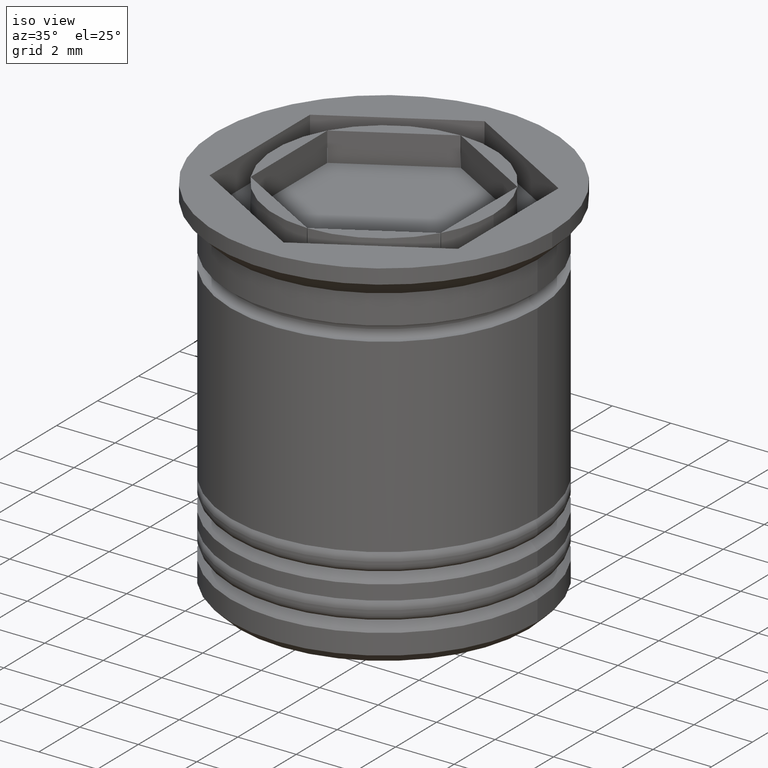
[diagram: clean part render]
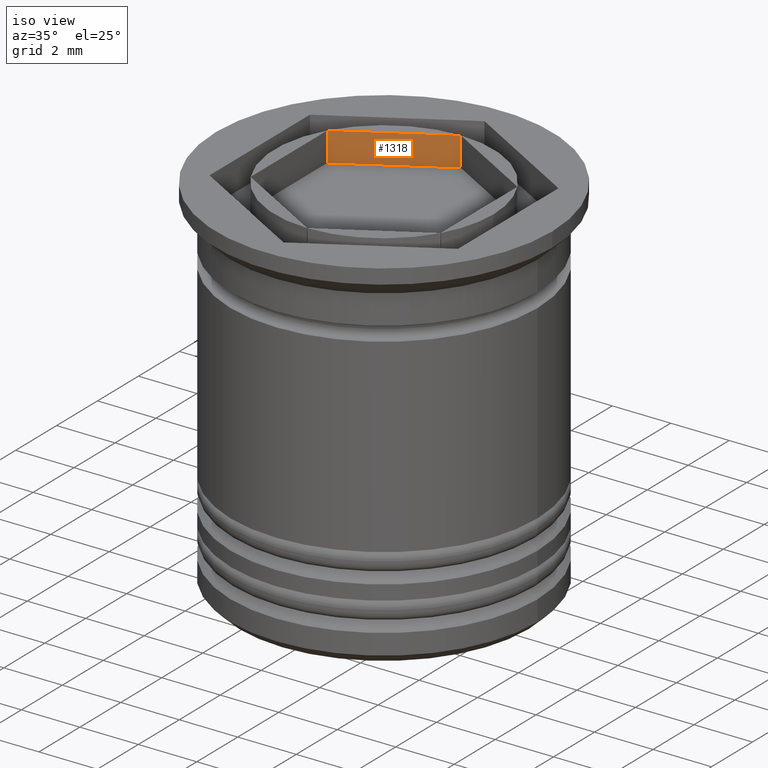
[diagram: same view with one face highlighted and labeled with its STEP entity id]
A machine part, iso view. The second image highlights one B-rep face of the part: STEP entity #1318.
In plain terms, the highlighted planar face has unit normal (-0.5, 0.866, 0).
Its self-contained STEP definition (entity closure, byte-faithful):
#177 = CARTESIAN_POINT ( 'NONE',  ( -1.625000000000000000, 2.814582562299425827, 0.000000000000000000 ) ) ;
#229 = VECTOR ( 'NONE', #1406, 1000.000000000000000 ) ;
#615 = CARTESIAN_POINT ( 'NONE',  ( -0.004814825398034354616, 3.749996908992910605, -1.000000000000000888 ) ) ;
#636 = EDGE_CURVE ( 'NONE', #1538, #1724, #1521, .T. ) ;
#639 = PLANE ( 'NONE',  #1363 ) ;
#796 = LINE ( 'NONE', #1880, #229 ) ;
#799 = DIRECTION ( 'NONE',  ( 0.8660254037844385966, 0.4999999999999999445, 0.000000000000000000 ) ) ;
#955 = ORIENTED_EDGE ( 'NONE', *, *, #636, .T. ) ;
#1037 = EDGE_CURVE ( 'NONE', #1439, #1468, #1560, .T. ) ;
#1041 = EDGE_CURVE ( 'NONE', #1468, #1538, #796, .T. ) ;
#1066 = ORIENTED_EDGE ( 'NONE', *, *, #1037, .T. ) ;
#1102 = VECTOR ( 'NONE', #799, 1000.000000000000114 ) ;
#1149 = CARTESIAN_POINT ( 'NONE',  ( -3.245185174601964651, 1.879168215605940162, 0.000000000000000000 ) ) ;
#1196 = DIRECTION ( 'NONE',  ( -0.000000000000000000, -0.000000000000000000, 1.000000000000000000 ) ) ;
#1249 = DIRECTION ( 'NONE',  ( -0.5000000000000000000, 0.8660254037844387076, 0.000000000000000000 ) ) ;
#1273 = FACE_OUTER_BOUND ( 'NONE', #1615, .T. ) ;
#1279 = CARTESIAN_POINT ( 'NONE',  ( 0.000000000000000000, 3.752776749732567030, -10.92891400573765459 ) ) ;
#1318 = ADVANCED_FACE ( 'NONE', ( #1273 ), #639, .F. ) ;
#1363 = AXIS2_PLACEMENT_3D ( 'NONE', #1279, #1249, #1405 ) ;
#1405 = DIRECTION ( 'NONE',  ( -0.8660254037844385966, -0.4999999999999999445, 0.000000000000000000 ) ) ;
#1406 = DIRECTION ( 'NONE',  ( 0.000000000000000000, 0.000000000000000000, -1.000000000000000000 ) ) ;
#1434 = VECTOR ( 'NONE', #1196, 1000.000000000000000 ) ;
#1439 = VERTEX_POINT ( 'NONE', #1484 ) ;
#1459 = VECTOR ( 'NONE', #1567, 1000.000000000000114 ) ;
#1468 = VERTEX_POINT ( 'NONE', #1149 ) ;
#1474 = ORIENTED_EDGE ( 'NONE', *, *, #1879, .T. ) ;
#1484 = CARTESIAN_POINT ( 'NONE',  ( -0.004814825398034763143, 3.749996908992911493, 0.000000000000000000 ) ) ;
#1521 = LINE ( 'NONE', #1671, #1102 ) ;
#1538 = VERTEX_POINT ( 'NONE', #1792 ) ;
#1560 = LINE ( 'NONE', #177, #1459 ) ;
#1567 = DIRECTION ( 'NONE',  ( -0.8660254037844385966, -0.4999999999999999445, -0.000000000000000000 ) ) ;
#1615 = EDGE_LOOP ( 'NONE', ( #1651, #955, #1474, #1066 ) ) ;
#1651 = ORIENTED_EDGE ( 'NONE', *, *, #1041, .T. ) ;
#1660 = CARTESIAN_POINT ( 'NONE',  ( -0.004814825398034546303, 3.749996908992911049, -1.000000000000000000 ) ) ;
#1671 = CARTESIAN_POINT ( 'NONE',  ( 0.000000000000000000, 3.752776749732567030, -1.000000000000000888 ) ) ;
#1724 = VERTEX_POINT ( 'NONE', #615 ) ;
#1790 = LINE ( 'NONE', #1660, #1434 ) ;
#1792 = CARTESIAN_POINT ( 'NONE',  ( -3.245185174601965539, 1.879168215605939718, -1.000000000000000888 ) ) ;
#1879 = EDGE_CURVE ( 'NONE', #1724, #1439, #1790, .T. ) ;
#1880 = CARTESIAN_POINT ( 'NONE',  ( -3.245185174601965095, 1.879168215605940384, -1.000000000000000000 ) ) ;